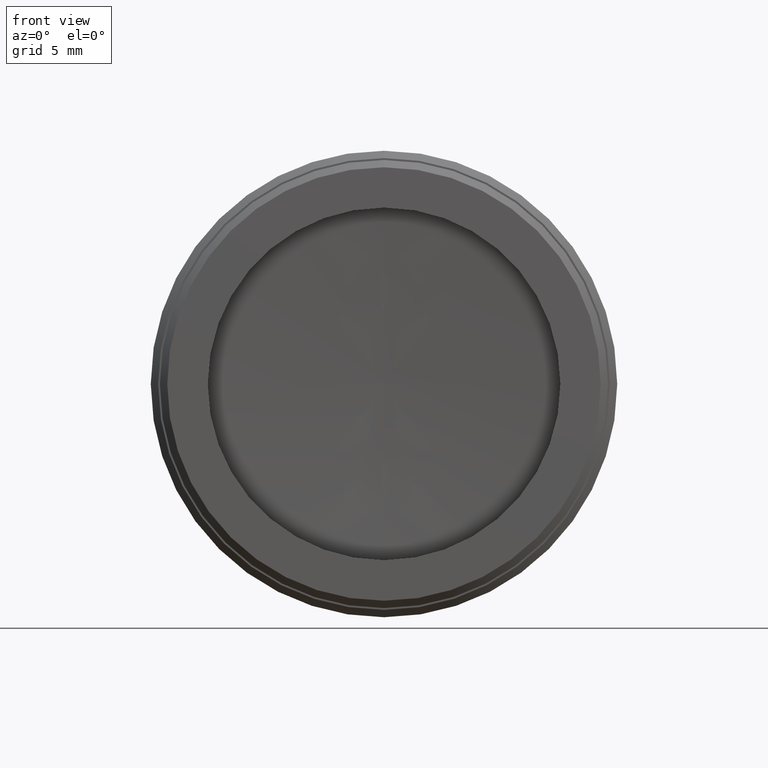
[diagram: clean part render]
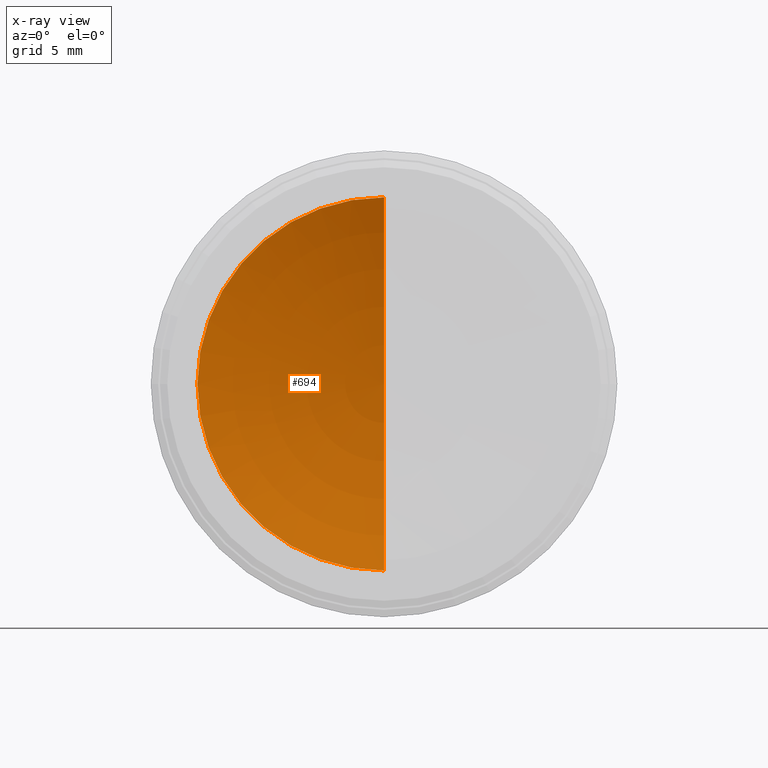
[diagram: x-ray — body ghosted, one internal face saturated and labeled with its STEP entity id]
A machine part, front view, then the same camera in x-ray: the body is ghosted and one INTERNAL B-rep face — a face not visible from any outside direction — is saturated and labeled: STEP entity #694.
In plain terms, the highlighted spherical surface has radius 27.1 mm.
Its self-contained STEP definition (entity closure, byte-faithful):
#118 = ORIENTED_EDGE ( 'NONE', *, *, #148, .F. ) ;
#148 = EDGE_CURVE ( 'NONE', #1174, #1089, #1420, .T. ) ;
#200 = DIRECTION ( 'NONE',  ( -1.000000000000000000, 1.224646799147353207E-16, -1.224646799147353947E-16 ) ) ;
#313 = AXIS2_PLACEMENT_3D ( 'NONE', #1451, #1308, #509 ) ;
#379 = CIRCLE ( 'NONE', #1226, 27.10000000000000497 ) ;
#429 = CARTESIAN_POINT ( 'NONE',  ( -62.96855859389910393, -15.52011078857001891, 19.92647029529261360 ) ) ;
#509 = DIRECTION ( 'NONE',  ( 0.000000000000000000, 0.000000000000000000, -1.000000000000000000 ) ) ;
#516 = FACE_OUTER_BOUND ( 'NONE', #860, .T. ) ;
#517 = EDGE_CURVE ( 'NONE', #1089, #1174, #379, .T. ) ;
#602 = DIRECTION ( 'NONE',  ( 1.224646799147353454E-16, 1.000000000000000000, 2.264485754198130300E-32 ) ) ;
#666 = DIRECTION ( 'NONE',  ( 0.000000000000000000, 0.000000000000000000, -1.000000000000000000 ) ) ;
#687 = CARTESIAN_POINT ( 'NONE',  ( -62.96855859389908971, 8.419814023341965381, 7.226470295292611645 ) ) ;
#694 = ADVANCED_FACE ( 'NONE', ( #516 ), #751, .F. ) ;
#751 = SPHERICAL_SURFACE ( 'NONE', #313, 27.09999999999999787 ) ;
#860 = EDGE_LOOP ( 'NONE', ( #1128, #118 ) ) ;
#889 = AXIS2_PLACEMENT_3D ( 'NONE', #1321, #602, #1067 ) ;
#1067 = DIRECTION ( 'NONE',  ( 0.000000000000000000, 0.000000000000000000, 1.000000000000000000 ) ) ;
#1089 = VERTEX_POINT ( 'NONE', #1267 ) ;
#1128 = ORIENTED_EDGE ( 'NONE', *, *, #517, .F. ) ;
#1174 = VERTEX_POINT ( 'NONE', #687 ) ;
#1226 = AXIS2_PLACEMENT_3D ( 'NONE', #429, #200, #666 ) ;
#1267 = CARTESIAN_POINT ( 'NONE',  ( -62.96855859389908971, 8.419814023341965381, 32.62647029529261289 ) ) ;
#1308 = DIRECTION ( 'NONE',  ( -1.224646799147352961E-16, -1.000000000000000000, -0.000000000000000000 ) ) ;
#1321 = CARTESIAN_POINT ( 'NONE',  ( -62.96855859389908971, 8.419814023341965381, 19.92647029529256741 ) ) ;
#1420 = CIRCLE ( 'NONE', #889, 12.70000000000000639 ) ;
#1451 = CARTESIAN_POINT ( 'NONE',  ( -62.96855859389910393, -15.52011078857001891, 19.92647029529261360 ) ) ;